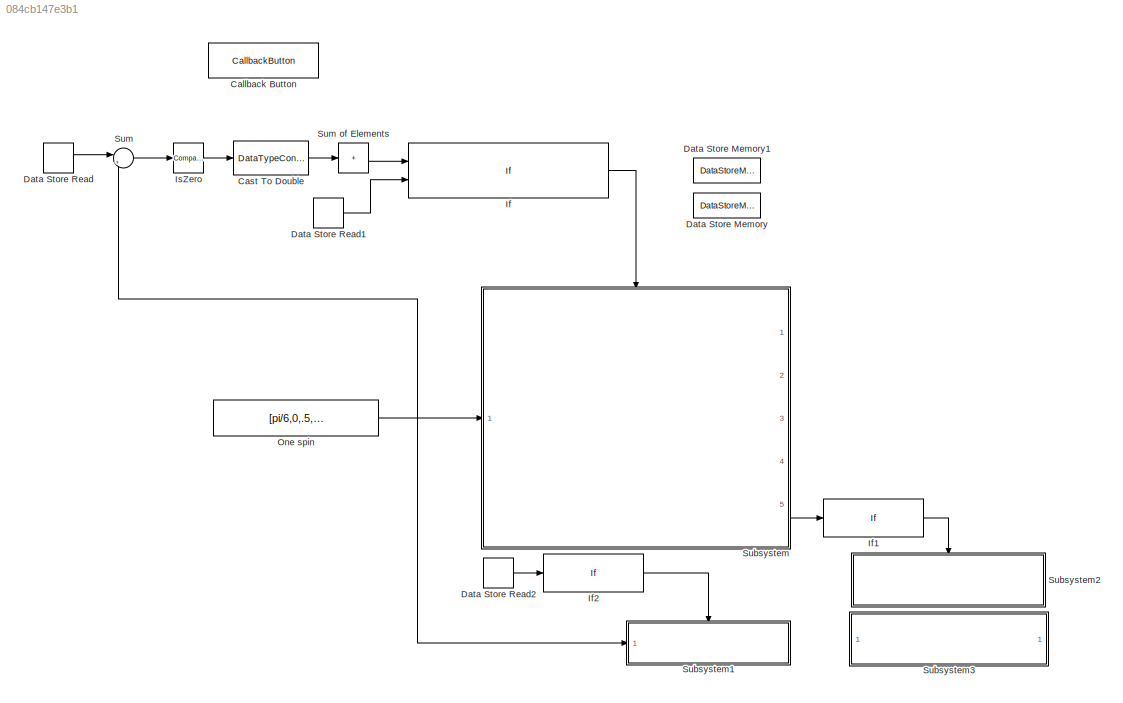
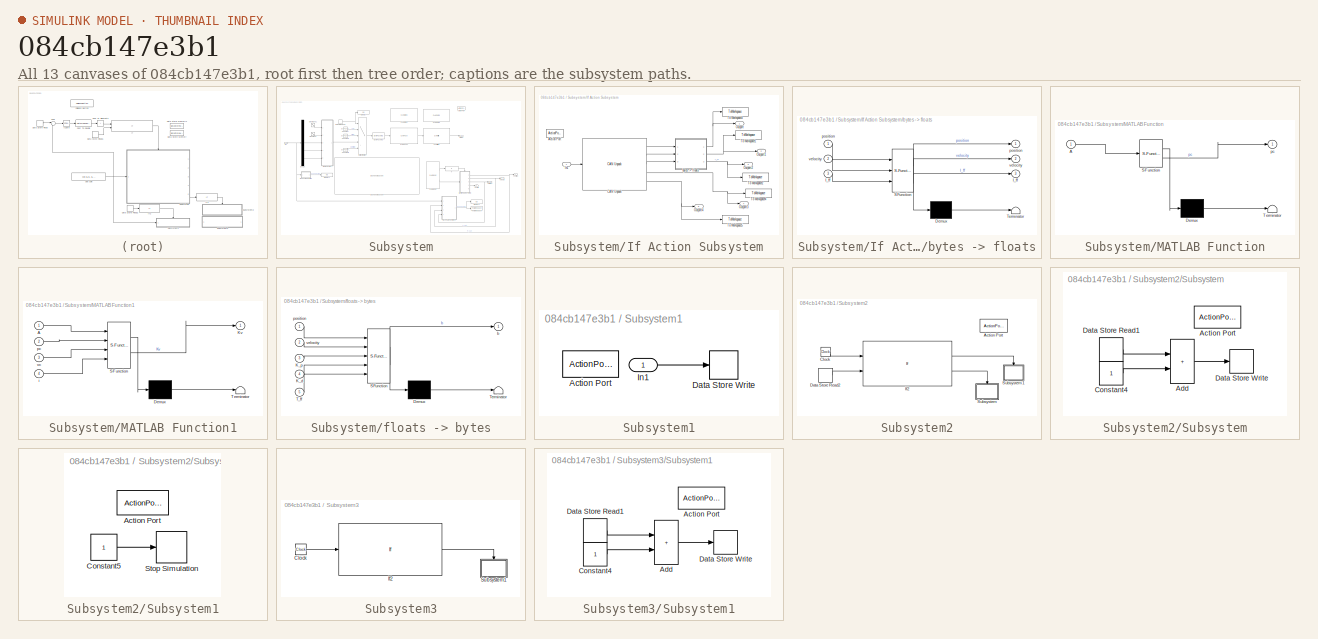
[diagram: thumbnail index - all 13 canvases of the model, root first then tree order]
MODEL slx_084cb147e3b1
KIND model
CONFIG AbsTol = auto
CONFIG EnableMultiTasking = off
CONFIG FixedStep = auto
CONFIG MaxStep = auto
CONFIG MinStep = auto
CONFIG RelTol = 1e-3
CONFIG SampleTimeConstraint = Unconstrained
CONFIG SolverName = VariableStepAuto
CONFIG StartTime = 0.0
CONFIG StopTime = 10.0
BLOCK [CallbackButton] Callback Button
  ButtonText = deinitiate
  ClickFcn = c = 1;
  StartFcn = c = 0;
BLOCK [DataTypeConversion] Cast To Double
  OutDataTypeStr = double
  RndMeth = Floor
  SaturateOnIntegerOverflow = off
BLOCK [DataStoreMemory] Data Store Memory
  DataLogging = on
  DataStoreName = c
  InitialValue = 1
  OutDataTypeStr = double
  OutMax = 4
  OutMin = 1
  ReadBeforeWriteMsg = warning
  ShowAdditionalParam = off
  WriteAfterReadMsg = warning
  WriteAfterWriteMsg = warning
BLOCK [DataStoreMemory] Data Store Memory1
  DataLogging = on
  DataStoreName = reinput
  InitialValue = [0,0,0,0,0]
  OutDataTypeStr = double
  OutMax = 500
  OutMin = -95.5
  ReadBeforeWriteMsg = warning
  ShowAdditionalParam = off
  WriteAfterReadMsg = warning
  WriteAfterWriteMsg = warning
BLOCK [DataStoreRead] Data Store Read
  DataStoreName = reinput
  IndexOptions = Index vector (dialog)
  Indices = 1
  OutputSizes = 1
  Ports = [0, 1]
BLOCK [DataStoreRead] Data Store Read1
  DataStoreName = c
  IndexOptions = Index vector (dialog)
  Indices = 1
  OutputSizes = 1
  Ports = [0, 1]
BLOCK [DataStoreRead] Data Store Read2
  DataStoreName = c
  IndexOptions = Index vector (dialog)
  Indices = 1
  OutputSizes = 1
  Ports = [0, 1]
BLOCK [If] If
  IfExpression = u2>0| u2 ~= 3 | (u2 == 3 & u1 ~= 0)
  NumInputs = 2
  Ports = [2, 1]
  ShowElse = off
BLOCK [If] If1
  IfExpression = u1 ~= 0
  Ports = [1, 1]
  ShowElse = off
BLOCK [If] If2
  IfExpression = u1 == 3
  Ports = [1, 1]
  ShowElse = off
BLOCK [Reference] IsZero  REF=simulink/Logic and Bit
Operations/Compare
To Zero
  Ports = [1, 1]
  SourceBlock = simulink/Logic and Bit\nOperations/Compare\nTo Zero
  SourceProductBaseCode = SL
  SourceType = Compare To Zero
BLOCK [Constant] One spin
  Value = [pi/6,0,.5,0,0]
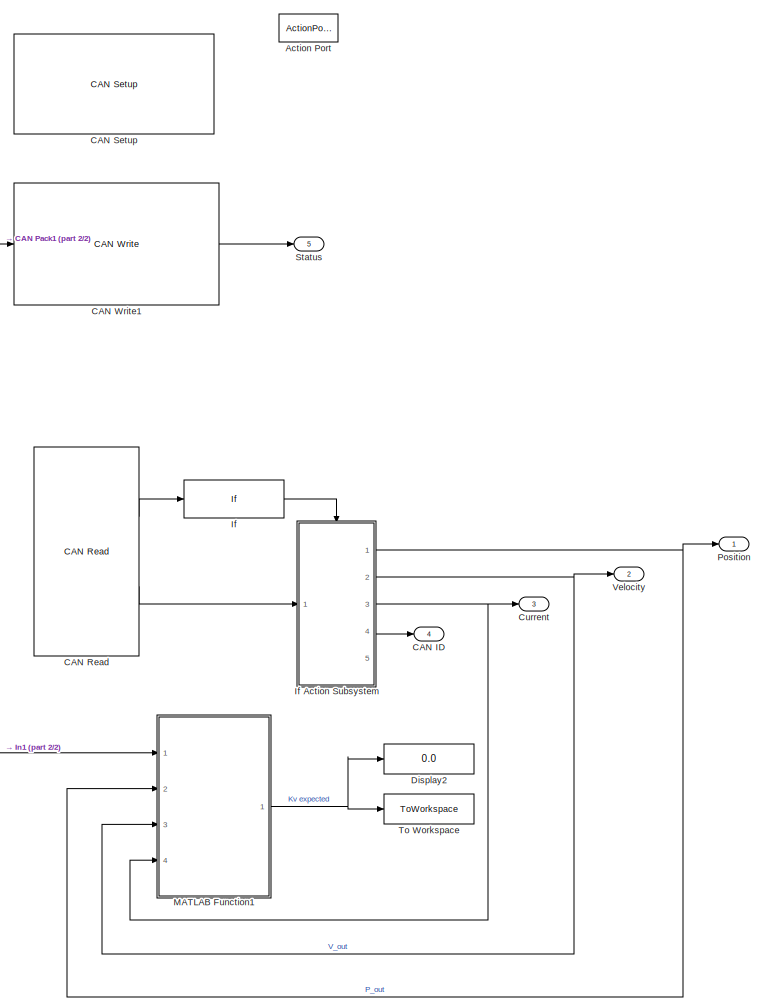
[diagram: Subsystem - part 1/2, right side, full height]
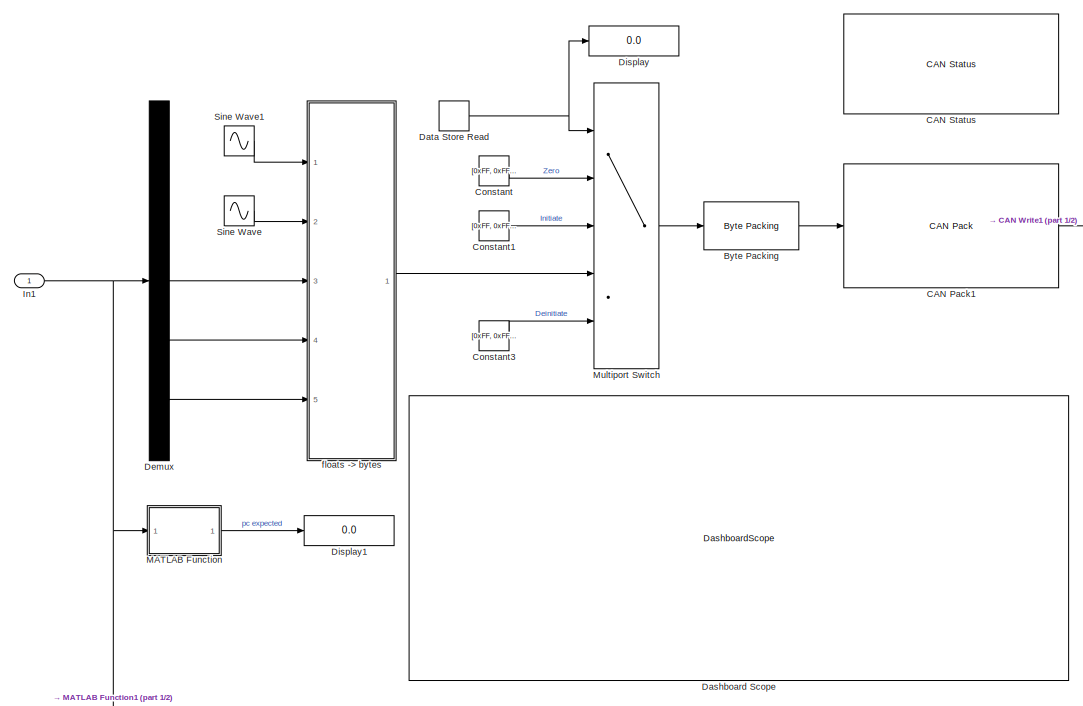
[diagram: Subsystem - part 2/2, middle left region]
BLOCK [SubSystem] Subsystem
  Ports = [1, 5, 0, 0, 0, 0, 0, 1]
  RequestExecContextInheritance = off
BLOCK [ActionPort] Subsystem/Action Port
  ActionPortLabel = if(u2>0| u2 ~= 3 | (u2 == 3 & u1 ~= 0) )
BLOCK [Reference] Subsystem/Byte Packing  REF=slrealtimeutilitieslib/Byte Packing
  Ports = [1, 1]
  SourceBlock = slrealtimeutilitieslib/Byte Packing
  SourceProductBaseCode = XP
  SourceType = slrealtimebytepacking
BLOCK [Outport] Subsystem/CAN ID
  Port = 4
BLOCK [Reference] Subsystem/CAN Pack1  REF=canmsglib/CAN Pack
  Ports = [1, 1]
  SourceBlock = canmsglib/CAN Pack
  SourceProductBaseCode = ME,XP,VN
  SourceType = CAN Pack
BLOCK [Reference] Subsystem/CAN Read  REF=speedgoatlib_IO691/CAN Read
  Ports = [0, 2]
  SourceBlock = speedgoatlib_IO691/CAN Read
  SourceProductName = Simulink Real-Time: Speedgoat I/O Blockset
  SourceType = read_IO691
BLOCK [Reference] Subsystem/CAN Setup   REF=speedgoatlib_IO691/CAN Setup 
  Ports = []
  SourceBlock = speedgoatlib_IO691/CAN Setup
  SourceProductName = Simulink Real-Time: Speedgoat I/O Blockset
  SourceType = setup_IO691
BLOCK [Reference] Subsystem/CAN Status  REF=speedgoatlib_IO691/CAN Status
  Ports = []
  SourceBlock = speedgoatlib_IO691/CAN Status
  SourceProductName = Simulink Real-Time: Speedgoat I/O Blockset
  SourceType = status_IO691
  UserDataPersistent = on
BLOCK [Reference] Subsystem/CAN Write1  REF=speedgoatlib_IO691/CAN Write
  Ports = [1, 1]
  SourceBlock = speedgoatlib_IO691/CAN Write
  SourceProductName = Simulink Real-Time: Speedgoat I/O Blockset
  SourceType = write_IO691
BLOCK [Constant] Subsystem/Constant
  Value = [0xFF, 0xFF, 0xFF, 0xFF, 0xFF, 0xFF, 0xFF, 0xFE]
BLOCK [Constant] Subsystem/Constant1
  Value = [0xFF, 0xFF, 0xFF, 0xFF, 0xFF, 0xFF, 0xFF, 0xFC]
BLOCK [Constant] Subsystem/Constant3
  Value = [0xFF, 0xFF, 0xFF, 0xFF, 0xFF, 0xFF, 0xFF, 0xFD]
BLOCK [Outport] Subsystem/Current
  Port = 3
BLOCK [DashboardScope] Subsystem/Dashboard Scope
BLOCK [DataStoreRead] Subsystem/Data Store Read
  DataStoreName = c
  IndexOptions = Index vector (dialog)
  Indices = 1
  OutputSizes = 1
  Ports = [0, 1]
BLOCK [Demux] Subsystem/Demux
  Outputs = 5
  Ports = [1, 5]
BLOCK [Display] Subsystem/Display
  Decimation = 1
  Ports = [1]
BLOCK [Display] Subsystem/Display1
  Decimation = 1
  Ports = [1]
BLOCK [Display] Subsystem/Display2
  Commented = on
  Decimation = 1
  Ports = [1]
BLOCK [If] Subsystem/If
  IfExpression = u1 ~= 0
  Ports = [1, 1]
  ShowElse = off
BLOCK [SubSystem] Subsystem/If Action Subsystem
  Ports = [1, 5, 0, 0, 0, 0, 0, 1]
  RequestExecContextInheritance = off
  TreatAsAtomicUnit = on
BLOCK [ActionPort] Subsystem/If Action Subsystem/Action Port
  ActionPortLabel = if(u1 ~= 0)
BLOCK [Reference] Subsystem/If Action Subsystem/CAN Unpack  REF=canmsglib/CAN Unpack
  Ports = [1, 5]
  SourceBlock = canmsglib/CAN Unpack
  SourceProductBaseCode = ME,XP,VN
  SourceType = CAN Unpack
BLOCK [Inport] Subsystem/If Action Subsystem/In1
BLOCK [Outport] Subsystem/If Action Subsystem/Outport
BLOCK [Outport] Subsystem/If Action Subsystem/Outport1
  Port = 2
BLOCK [Outport] Subsystem/If Action Subsystem/Outport2
  Port = 3
BLOCK [Outport] Subsystem/If Action Subsystem/Outport3
  Port = 4
BLOCK [Outport] Subsystem/If Action Subsystem/Outport4
  Port = 5
BLOCK [ToWorkspace] Subsystem/If Action Subsystem/To Workspace1
  FixptAsFi = on
  MaxDataPoints = inf
  Ports = [1]
  SampleTime = -1
  VariableName = simout5
BLOCK [ToWorkspace] Subsystem/If Action Subsystem/To Workspace2
  FixptAsFi = on
  MaxDataPoints = inf
  Ports = [1]
  SampleTime = -1
  VariableName = simout6
BLOCK [ToWorkspace] Subsystem/If Action Subsystem/To Workspace3
  FixptAsFi = on
  MaxDataPoints = inf
  Ports = [1]
  SampleTime = -1
  VariableName = simout7
BLOCK [ToWorkspace] Subsystem/If Action Subsystem/To Workspace4
  FixptAsFi = on
  MaxDataPoints = inf
  Ports = [1]
  SampleTime = -1
  VariableName = simout8
BLOCK [ToWorkspace] Subsystem/If Action Subsystem/To Workspace5
  FixptAsFi = on
  MaxDataPoints = inf
  Ports = [1]
  SampleTime = -1
  VariableName = simout9
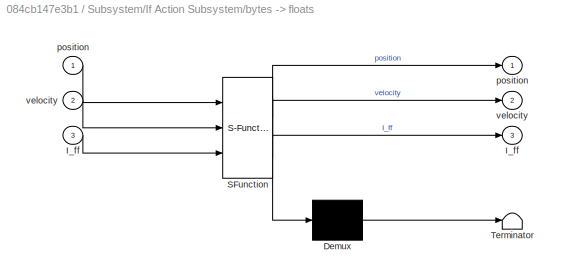
BLOCK [SubSystem] Subsystem/If Action Subsystem/bytes -> floats
  ErrorFcn = Stateflow.Translate.translate
  PermitHierarchicalResolution = ExplicitOnly
  Ports = [3, 3]
  RequestExecContextInheritance = off
  SFBlockType = MATLAB Function
  TreatAsAtomicUnit = on
BLOCK [Demux] Subsystem/If Action Subsystem/bytes -> floats/ Demux 
  Outputs = 1
  Ports = [1, 1]
BLOCK [S-Function] Subsystem/If Action Subsystem/bytes -> floats/ SFunction 
  EnableBusSupport = on
  FunctionName = sf_sfun
  PortCounts = [3 4]
  Ports = [3, 4]
  SFcnIsStateOwnerBlock = off
  SFunctionDeploymentMode = off
  Tag = Stateflow S-Function 2
BLOCK [Terminator] Subsystem/If Action Subsystem/bytes -> floats/ Terminator 
BLOCK [Outport] Subsystem/If Action Subsystem/bytes -> floats/I_ff
  Port = 3
BLOCK [Inport] Subsystem/If Action Subsystem/bytes -> floats/I_ff 
  Port = 3
BLOCK [Outport] Subsystem/If Action Subsystem/bytes -> floats/position
BLOCK [Inport] Subsystem/If Action Subsystem/bytes -> floats/position 
BLOCK [Outport] Subsystem/If Action Subsystem/bytes -> floats/velocity
  Port = 2
BLOCK [Inport] Subsystem/If Action Subsystem/bytes -> floats/velocity 
  Port = 2
BLOCK [Inport] Subsystem/In1
BLOCK [SubSystem] Subsystem/MATLAB Function
  ErrorFcn = Stateflow.Translate.translate
  PermitHierarchicalResolution = ExplicitOnly
  Ports = [1, 1]
  RequestExecContextInheritance = off
  SFBlockType = MATLAB Function
  TreatAsAtomicUnit = on
BLOCK [Demux] Subsystem/MATLAB Function/ Demux 
  Outputs = 1
  Ports = [1, 1]
BLOCK [S-Function] Subsystem/MATLAB Function/ SFunction 
  EnableBusSupport = on
  FunctionName = sf_sfun
  PortCounts = [1 2]
  Ports = [1, 2]
  SFcnIsStateOwnerBlock = off
  SFunctionDeploymentMode = off
  Tag = Stateflow S-Function 3
BLOCK [Terminator] Subsystem/MATLAB Function/ Terminator 
BLOCK [Inport] Subsystem/MATLAB Function/A
BLOCK [Outport] Subsystem/MATLAB Function/pc
BLOCK [SubSystem] Subsystem/MATLAB Function1
  Commented = on
  ErrorFcn = Stateflow.Translate.translate
  PermitHierarchicalResolution = ExplicitOnly
  Ports = [4, 1]
  RequestExecContextInheritance = off
  SFBlockType = MATLAB Function
  TreatAsAtomicUnit = on
BLOCK [Demux] Subsystem/MATLAB Function1/ Demux 
  Outputs = 1
  Ports = [1, 1]
BLOCK [S-Function] Subsystem/MATLAB Function1/ SFunction 
  EnableBusSupport = on
  FunctionName = sf_sfun
  PortCounts = [4 2]
  Ports = [4, 2]
  SFcnIsStateOwnerBlock = off
  SFunctionDeploymentMode = off
  Tag = Stateflow S-Function 4
BLOCK [Terminator] Subsystem/MATLAB Function1/ Terminator 
BLOCK [Inport] Subsystem/MATLAB Function1/A
BLOCK [Outport] Subsystem/MATLAB Function1/Kv
BLOCK [Inport] Subsystem/MATLAB Function1/i
  Port = 4
BLOCK [Inport] Subsystem/MATLAB Function1/pc
  Port = 2
BLOCK [Inport] Subsystem/MATLAB Function1/vc
  Port = 3
BLOCK [MultiPortSwitch] Subsystem/Multiport Switch
  InputSameDT = off
  Inputs = 4
  Ports = [5, 1]
  SaturateOnIntegerOverflow = off
BLOCK [Outport] Subsystem/Position
BLOCK [Sin] Subsystem/Sine Wave
  Amplitude = pi/2
  Frequency = 2*pi/3
  Phase = pi/2
  Ports = [0, 1]
  SampleTime = 0
BLOCK [Sin] Subsystem/Sine Wave1
  Amplitude = pi/2
  Frequency = 2*pi/3
  Ports = [0, 1]
  SampleTime = 0
BLOCK [Outport] Subsystem/Status
  Port = 5
BLOCK [ToWorkspace] Subsystem/To Workspace
  Commented = on
  FixptAsFi = on
  MaxDataPoints = inf
  Ports = [1]
  SampleTime = -1
  SaveFormat = Timeseries
  VariableName = Kv_expect
BLOCK [Outport] Subsystem/Velocity
  Port = 2
BLOCK [SubSystem] Subsystem/floats -> bytes
  ErrorFcn = Stateflow.Translate.translate
  PermitHierarchicalResolution = ExplicitOnly
  Ports = [5, 1]
  RequestExecContextInheritance = off
  SFBlockType = MATLAB Function
  TreatAsAtomicUnit = on
BLOCK [Demux] Subsystem/floats -> bytes/ Demux 
  Outputs = 1
  Ports = [1, 1]
BLOCK [S-Function] Subsystem/floats -> bytes/ SFunction 
  EnableBusSupport = on
  FunctionName = sf_sfun
  PortCounts = [5 2]
  Ports = [5, 2]
  SFcnIsStateOwnerBlock = off
  SFunctionDeploymentMode = off
  Tag = Stateflow S-Function 1
BLOCK [Terminator] Subsystem/floats -> bytes/ Terminator 
BLOCK [Inport] Subsystem/floats -> bytes/K_d
  Port = 4
BLOCK [Inport] Subsystem/floats -> bytes/K_p
  Port = 3
BLOCK [Inport] Subsystem/floats -> bytes/T_ff
  Port = 5
BLOCK [Outport] Subsystem/floats -> bytes/b
BLOCK [Inport] Subsystem/floats -> bytes/position
BLOCK [Inport] Subsystem/floats -> bytes/velocity
  Port = 2
BLOCK [SubSystem] Subsystem1
  Ports = [1, 0, 0, 0, 0, 0, 0, 1]
  RequestExecContextInheritance = off
BLOCK [ActionPort] Subsystem1/Action Port
  ActionPortLabel = if(u1 == 3)
BLOCK [DataStoreWrite] Subsystem1/Data Store Write
  DataStoreName = reinput
  IndexOptions = Index vector (dialog)
  Indices = 1
  OutputSizes = 1
  Ports = [1]
BLOCK [Inport] Subsystem1/In1
BLOCK [SubSystem] Subsystem2
  Ports = [0, 0, 0, 0, 0, 0, 0, 1]
  RequestExecContextInheritance = off
BLOCK [ActionPort] Subsystem2/Action Port
  ActionPortLabel = if(u1 ~= 0)
BLOCK [Clock] Subsystem2/Clock
BLOCK [DataStoreRead] Subsystem2/Data Store Read2
  DataStoreName = c
  IndexOptions = Index vector (dialog)
  Indices = 1
  OutputSizes = 1
  Ports = [0, 1]
BLOCK [If] Subsystem2/If2
  ElseIfExpressions = (u2<3) | (u1 > 9.5)
  IfExpression = u2 > 3
  NumInputs = 2
  Ports = [2, 2]
  ShowElse = off
BLOCK [SubSystem] Subsystem2/Subsystem
  Ports = [0, 0, 0, 0, 0, 0, 0, 1]
  RequestExecContextInheritance = off
BLOCK [ActionPort] Subsystem2/Subsystem/Action Port
  ActionPortLabel = elseif((u2<3) | (u1 > 9.5))
BLOCK [Sum] Subsystem2/Subsystem/Add
  IconShape = rectangular
  Ports = [2, 1]
BLOCK [Constant] Subsystem2/Subsystem/Constant4
BLOCK [DataStoreRead] Subsystem2/Subsystem/Data Store Read1
  DataStoreName = c
  IndexOptions = Index vector (dialog)
  Indices = 1
  OutputSizes = 1
  Ports = [0, 1]
BLOCK [DataStoreWrite] Subsystem2/Subsystem/Data Store Write
  DataStoreName = c
  IndexOptions = Index vector (dialog)
  Indices = 1
  OutputSizes = 1
  Ports = [1]
BLOCK [SubSystem] Subsystem2/Subsystem1
  Ports = [0, 0, 0, 0, 0, 0, 0, 1]
  RequestExecContextInheritance = off
BLOCK [ActionPort] Subsystem2/Subsystem1/Action Port
  ActionPortLabel = if(u2 > 3)
BLOCK [Constant] Subsystem2/Subsystem1/Constant5
BLOCK [Stop] Subsystem2/Subsystem1/Stop Simulation
BLOCK [SubSystem] Subsystem3
  Commented = on
  Ports = []
  RequestExecContextInheritance = off
BLOCK [Clock] Subsystem3/Clock
BLOCK [If] Subsystem3/If2
  IfExpression = (u1 > 19.5)
  Ports = [1, 1]
  ShowElse = off
BLOCK [SubSystem] Subsystem3/Subsystem1
  Ports = [0, 0, 0, 0, 0, 0, 0, 1]
  RequestExecContextInheritance = off
BLOCK [ActionPort] Subsystem3/Subsystem1/Action Port
BLOCK [Sum] Subsystem3/Subsystem1/Add
  IconShape = rectangular
  Ports = [2, 1]
BLOCK [Constant] Subsystem3/Subsystem1/Constant4
BLOCK [DataStoreRead] Subsystem3/Subsystem1/Data Store Read1
  DataStoreName = c
  IndexOptions = Index vector (dialog)
  Indices = 1
  OutputSizes = 1
  Ports = [0, 1]
BLOCK [DataStoreWrite] Subsystem3/Subsystem1/Data Store Write
  DataStoreName = c
  IndexOptions = Index vector (dialog)
  Indices = 1
  OutputSizes = 1
  Ports = [1]
BLOCK [Sum] Sum
  Inputs = |+-
  Ports = [2, 1]
BLOCK [Sum] Sum of Elements
  IconShape = rectangular
  Inputs = +
  Ports = [1, 1]
  RndMeth = Ceiling
LINE Cast To Double:1 -> Sum of Elements:1
LINE Data Store Read1:1 -> If:2
LINE Data Store Read2:1 -> If2:1
LINE Data Store Read:1 -> Sum:1
LINE If1:1 -> Subsystem2:ifaction
LINE If2:1 -> Subsystem1:ifaction
LINE If:1 -> Subsystem:ifaction
LINE IsZero:1 -> Cast To Double:1
NET One spin:1 -> Subsystem1:1, Subsystem:1, Sum:2
LINE Subsystem/Byte Packing:1 -> Subsystem/CAN Pack1:1
LINE Subsystem/CAN Pack1:1 -> Subsystem/CAN Write1:1
LINE Subsystem/CAN Read:1 -> Subsystem/If:1
LINE Subsystem/CAN Read:2 -> Subsystem/If Action Subsystem:1
LINE Subsystem/CAN Write1:1 -> Subsystem/Status:1
LINE Subsystem/Constant1:1 -> Subsystem/Multiport Switch:3
LINE Subsystem/Constant3:1 -> Subsystem/Multiport Switch:5
LINE Subsystem/Constant:1 -> Subsystem/Multiport Switch:2
NET Subsystem/Data Store Read:1 -> Subsystem/Display:1, Subsystem/Multiport Switch:1
LINE Subsystem/Demux:3 -> Subsystem/floats -> bytes:3
LINE Subsystem/Demux:4 -> Subsystem/floats -> bytes:4
LINE Subsystem/Demux:5 -> Subsystem/floats -> bytes:5
LINE Subsystem/If Action Subsystem/CAN Unpack:1 -> Subsystem/If Action Subsystem/bytes -> floats:1
LINE Subsystem/If Action Subsystem/CAN Unpack:2 -> Subsystem/If Action Subsystem/bytes -> floats:2
LINE Subsystem/If Action Subsystem/CAN Unpack:3 -> Subsystem/If Action Subsystem/bytes -> floats:3
NET Subsystem/If Action Subsystem/CAN Unpack:4 -> Subsystem/If Action Subsystem/Outport3:1, Subsystem/If Action Subsystem/To Workspace4:1
NET Subsystem/If Action Subsystem/CAN Unpack:5 -> Subsystem/If Action Subsystem/Outport4:1, Subsystem/If Action Subsystem/To Workspace5:1
LINE Subsystem/If Action Subsystem/In1:1 -> Subsystem/If Action Subsystem/CAN Unpack:1
NET Subsystem/If Action Subsystem/bytes -> floats:1 -> Subsystem/If Action Subsystem/Outport:1, Subsystem/If Action Subsystem/To Workspace3:1
NET Subsystem/If Action Subsystem/bytes -> floats:2 -> Subsystem/If Action Subsystem/Outport1:1, Subsystem/If Action Subsystem/To Workspace1:1
NET Subsystem/If Action Subsystem/bytes -> floats:3 -> Subsystem/If Action Subsystem/Outport2:1, Subsystem/If Action Subsystem/To Workspace2:1
NET Subsystem/If Action Subsystem:1 -> Subsystem/MATLAB Function1:2, Subsystem/Position:1
NET Subsystem/If Action Subsystem:2 -> Subsystem/MATLAB Function1:3, Subsystem/Velocity:1
NET Subsystem/If Action Subsystem:3 -> Subsystem/Current:1, Subsystem/MATLAB Function1:4
LINE Subsystem/If Action Subsystem:4 -> Subsystem/CAN ID:1
LINE Subsystem/If:1 -> Subsystem/If Action Subsystem:ifaction
NET Subsystem/In1:1 -> Subsystem/Demux:1, Subsystem/MATLAB Function1:1, Subsystem/MATLAB Function:1
NET Subsystem/MATLAB Function1:1 -> Subsystem/Display2:1, Subsystem/To Workspace:1
LINE Subsystem/MATLAB Function:1 -> Subsystem/Display1:1
LINE Subsystem/Multiport Switch:1 -> Subsystem/Byte Packing:1
LINE Subsystem/Sine Wave1:1 -> Subsystem/floats -> bytes:1
LINE Subsystem/Sine Wave:1 -> Subsystem/floats -> bytes:2
LINE Subsystem/floats -> bytes:1 -> Subsystem/Multiport Switch:4
LINE Subsystem1/In1:1 -> Subsystem1/Data Store Write:1
LINE Subsystem2/Clock:1 -> Subsystem2/If2:1
LINE Subsystem2/Data Store Read2:1 -> Subsystem2/If2:2
LINE Subsystem2/If2:1 -> Subsystem2/Subsystem1:ifaction
LINE Subsystem2/If2:2 -> Subsystem2/Subsystem:ifaction
LINE Subsystem2/Subsystem/Add:1 -> Subsystem2/Subsystem/Data Store Write:1
LINE Subsystem2/Subsystem/Constant4:1 -> Subsystem2/Subsystem/Add:2
LINE Subsystem2/Subsystem/Data Store Read1:1 -> Subsystem2/Subsystem/Add:1
LINE Subsystem2/Subsystem1/Constant5:1 -> Subsystem2/Subsystem1/Stop Simulation:1
LINE Subsystem3/Clock:1 -> Subsystem3/If2:1
LINE Subsystem3/If2:1 -> Subsystem3/Subsystem1:ifaction
LINE Subsystem3/Subsystem1/Add:1 -> Subsystem3/Subsystem1/Data Store Write:1
LINE Subsystem3/Subsystem1/Constant4:1 -> Subsystem3/Subsystem1/Add:2
LINE Subsystem3/Subsystem1/Data Store Read1:1 -> Subsystem3/Subsystem1/Add:1
LINE Subsystem:5 -> If1:1
LINE Sum of Elements:1 -> If:1
LINE Sum:1 -> IsZero:1
note: NET lines group one-source signal fan-out (src -> all destinations, sorted); 1:1 wires keep LINE
CHART Subsystem/floats -> bytes states=1 transitions=1
  STATE_LABEL 'eML_blk_kernel()'
  STATE_LABEL 'SCRIPT:\nfunction b = fcn(position, velocity, K_p, K_d, T_ff)\n\nP_MIN  =-95.5;  % [rad]\nP_MAX  = 95.5;  % [rad]\nV_MIN  =-45;    % [rad/s] 30 to 45\nV_MAX  = 45;    % [rad/s]\nKP_MIN = 0;     % [Nm/rad]\nKP_MAX = 500;   % [Nm/rad]\nKD_MIN = 0;     % [Nm*s/rad\nKD_MAX = 5;     % [Nm*s/rad\nT_MIN  =-18;    % [Nm]\nT_MAX  = 18;    % [Nm]\n\nposition = floor((max(min(position,P_MAX) ,P_MIN)  - P_MIN )*65535/(P_MA...<+891ch>'
CHART Subsystem/If Action
Subsystem/bytes -> floats states=1 transitions=1
  STATE_LABEL 'eML_blk_kernel()'
  STATE_LABEL 'SCRIPT:\nfunction [position, velocity, I_ff] = fcn(position, velocity, I_ff)\n\nP_MIN  =-95.5;  % [rad]\nP_MAX  = 95.5;  % [rad]\nV_MIN  =-45;    % [rad/s]\nV_MAX  = 45;    % [rad/s]\nI_MIN  =-40;    % []\nI_MAX  = 40;    % []\n\nposition = position*(P_MAX  - P_MIN)/65535+ P_MIN;\nvelocity = velocity*(V_MAX  - V_MIN)/4095 + V_MIN;\nI_ff     = I_ff*(I_MAX  - I_MIN)/4095 + I_MIN;'
CHART Subsystem/MATLAB Function states=1 transitions=1
  STATE_LABEL 'eML_blk_kernel()'
  STATE_LABEL 'SCRIPT:\nfunction pc  = getPc(A)\n    pc = (A(4)*A(2) + A(5))/A(3) + A(1);\nend\n'
CHART Subsystem/MATLAB Function1 states=1 transitions=1
  STATE_LABEL 'eML_blk_kernel()'
  STATE_LABEL 'SCRIPT:\nfunction Kv  = getKv(A,pc,vc,i)\n    Kv = (A(3)*(A(1)-pc) + A(4)*(A(2) - vc) +A(5))/i;\nend\n'
CHART  states=0 transitions=0
CHART  states=0 transitions=0
CHART  states=0 transitions=0
CHART  states=0 transitions=0
